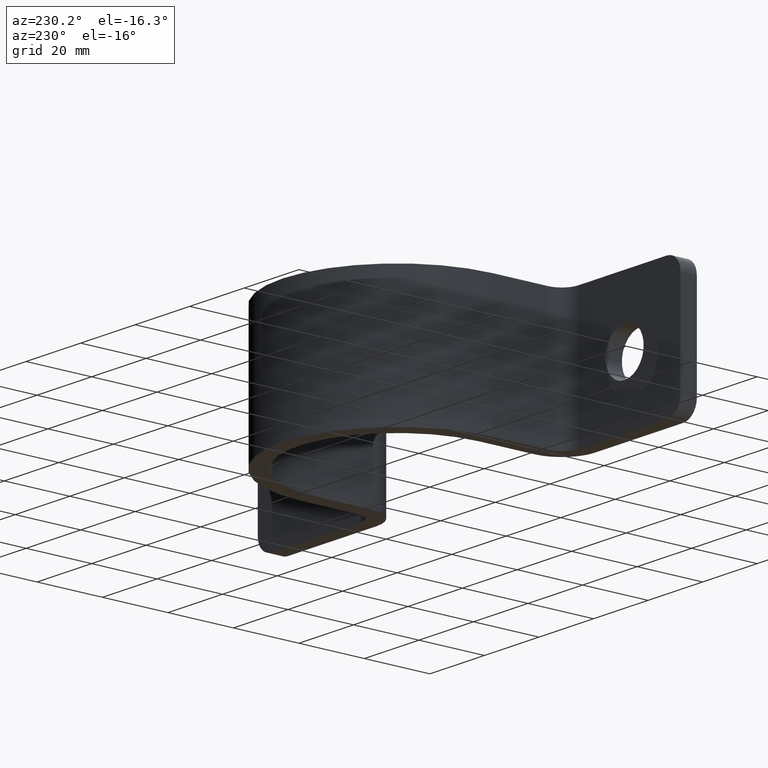
[diagram: clean part render]
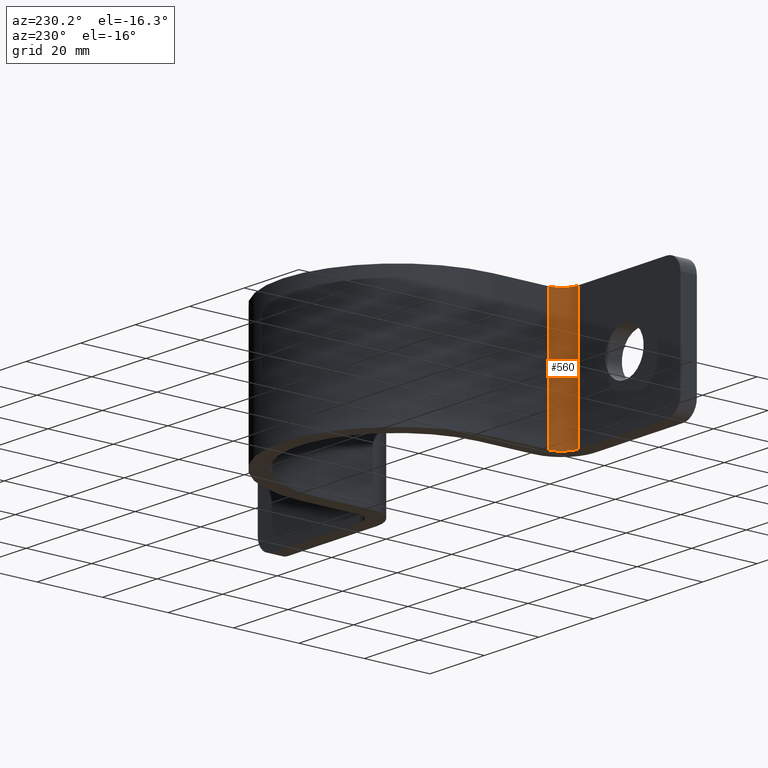
[diagram: same view with one face highlighted and labeled with its STEP entity id]
A machine part, auxiliary view. The second image highlights one B-rep face of the part: STEP entity #560.
In plain terms, the highlighted cylindrical surface (edge-blend (fillet) strip) has radius 5 mm, axis along (-0, -0, -1).
Its self-contained STEP definition (entity closure, byte-faithful):
#44 = CARTESIAN_POINT ( 'NONE',  ( -40.00000000000000000, 7.999999999999979572, 20.00000000000000000 ) ) ;
#97 = CARTESIAN_POINT ( 'NONE',  ( -34.99999999999999289, 12.99999999999998046, 20.00000000000000000 ) ) ;
#98 = CIRCLE ( 'NONE', #166, 4.999999999999997335 ) ;
#111 = CARTESIAN_POINT ( 'NONE',  ( -40.00000000000000000, 7.999999999999979572, 20.00000000000000000 ) ) ;
#112 = DIRECTION ( 'NONE',  ( 0.000000000000000000, 0.000000000000000000, 1.000000000000000000 ) ) ;
#166 = AXIS2_PLACEMENT_3D ( 'NONE', #518, #112, #355 ) ;
#188 = CARTESIAN_POINT ( 'NONE',  ( -40.00000000000000000, 7.999999999999979572, -20.00000000000000000 ) ) ;
#219 = DIRECTION ( 'NONE',  ( 0.000000000000000000, 0.000000000000000000, 1.000000000000000000 ) ) ;
#245 = EDGE_LOOP ( 'NONE', ( #638, #573, #382, #1111 ) ) ;
#247 = EDGE_CURVE ( 'NONE', #285, #998, #768, .T. ) ;
#285 = VERTEX_POINT ( 'NONE', #97 ) ;
#301 = FACE_OUTER_BOUND ( 'NONE', #245, .T. ) ;
#317 = CARTESIAN_POINT ( 'NONE',  ( -34.99999999999999289, 12.99999999999998046, -20.00000000000000000 ) ) ;
#333 = DIRECTION ( 'NONE',  ( -0.000000000000000000, -0.000000000000000000, -1.000000000000000000 ) ) ;
#355 = DIRECTION ( 'NONE',  ( 1.000000000000000000, 0.000000000000000000, 0.000000000000000000 ) ) ;
#382 = ORIENTED_EDGE ( 'NONE', *, *, #594, .T. ) ;
#418 = VECTOR ( 'NONE', #450, 1000.000000000000000 ) ;
#450 = DIRECTION ( 'NONE',  ( -0.000000000000000000, -0.000000000000000000, -1.000000000000000000 ) ) ;
#492 = VECTOR ( 'NONE', #333, 1000.000000000000000 ) ;
#518 = CARTESIAN_POINT ( 'NONE',  ( -40.00000000000000000, 12.99999999999998046, 20.00000000000000000 ) ) ;
#560 = ADVANCED_FACE ( 'NONE', ( #301 ), #783, .F. ) ;
#573 = ORIENTED_EDGE ( 'NONE', *, *, #838, .F. ) ;
#594 = EDGE_CURVE ( 'NONE', #663, #285, #98, .T. ) ;
#625 = LINE ( 'NONE', #111, #418 ) ;
#638 = ORIENTED_EDGE ( 'NONE', *, *, #719, .F. ) ;
#647 = DIRECTION ( 'NONE',  ( -1.000000000000000000, 0.000000000000000000, 0.000000000000000000 ) ) ;
#663 = VERTEX_POINT ( 'NONE', #44 ) ;
#711 = CARTESIAN_POINT ( 'NONE',  ( -40.00000000000000000, 12.99999999999998046, 20.00000000000000000 ) ) ;
#719 = EDGE_CURVE ( 'NONE', #760, #998, #839, .T. ) ;
#760 = VERTEX_POINT ( 'NONE', #188 ) ;
#768 = LINE ( 'NONE', #875, #492 ) ;
#780 = DIRECTION ( 'NONE',  ( 1.000000000000000000, 0.000000000000000000, 0.000000000000000000 ) ) ;
#783 = CYLINDRICAL_SURFACE ( 'NONE', #827, 4.999999999999997335 ) ;
#827 = AXIS2_PLACEMENT_3D ( 'NONE', #711, #1054, #647 ) ;
#838 = EDGE_CURVE ( 'NONE', #663, #760, #625, .T. ) ;
#839 = CIRCLE ( 'NONE', #1016, 4.999999999999997335 ) ;
#875 = CARTESIAN_POINT ( 'NONE',  ( -34.99999999999999289, 12.99999999999998046, 20.00000000000000000 ) ) ;
#985 = CARTESIAN_POINT ( 'NONE',  ( -40.00000000000000000, 12.99999999999998046, -20.00000000000000000 ) ) ;
#998 = VERTEX_POINT ( 'NONE', #317 ) ;
#1016 = AXIS2_PLACEMENT_3D ( 'NONE', #985, #219, #780 ) ;
#1054 = DIRECTION ( 'NONE',  ( -0.000000000000000000, -0.000000000000000000, -1.000000000000000000 ) ) ;
#1111 = ORIENTED_EDGE ( 'NONE', *, *, #247, .T. ) ;